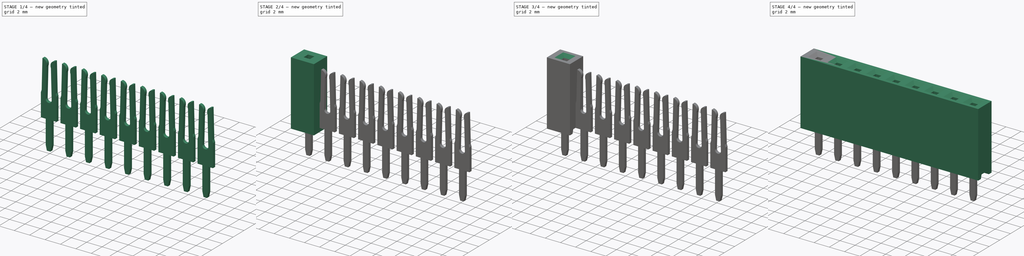
[diagram: build sequence overview — one tinted view per stage of 4, left to right]
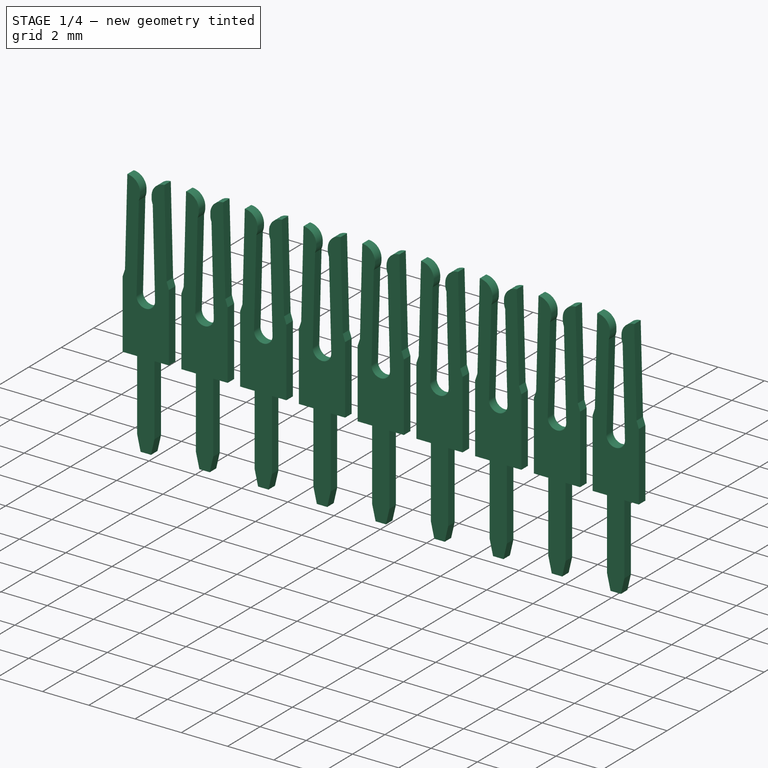
[diagram: stage 1 of 4 — iso view after this stage's code; geometry added in this stage tinted green]
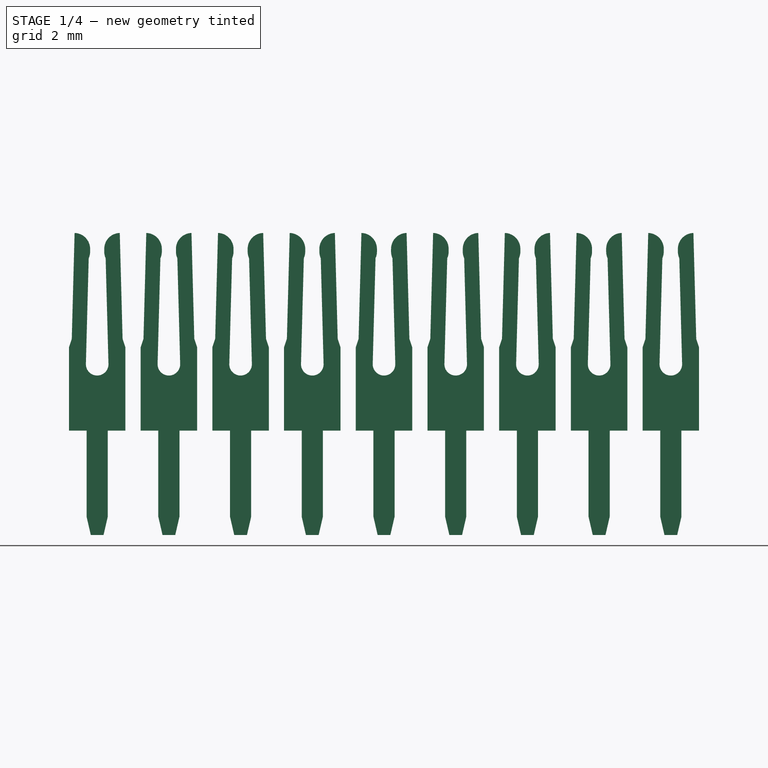
[diagram: stage 1 of 4 — front view after this stage's code; geometry added in this stage tinted green]
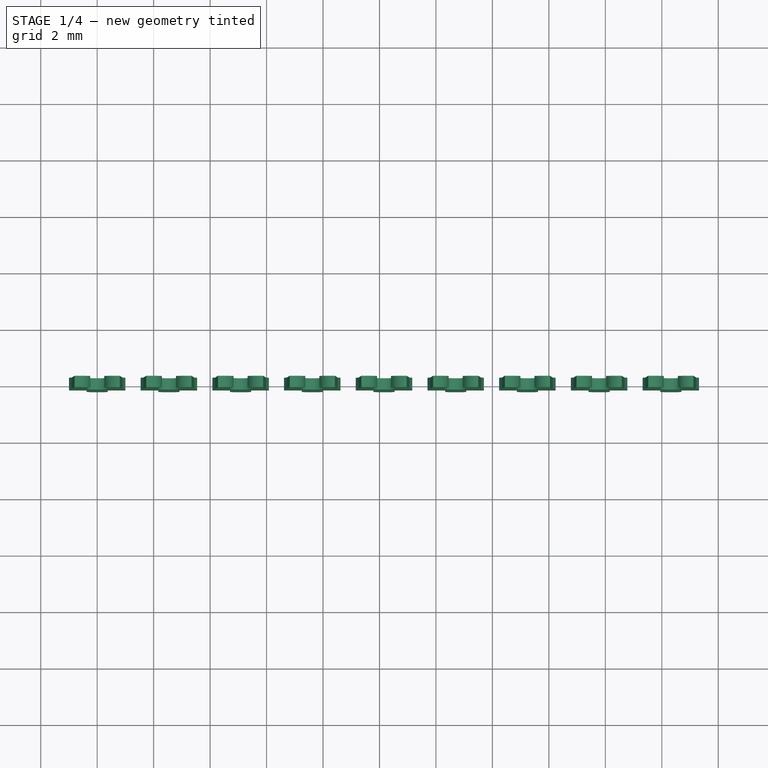
[diagram: stage 1 of 4 — top view after this stage's code; geometry added in this stage tinted green]
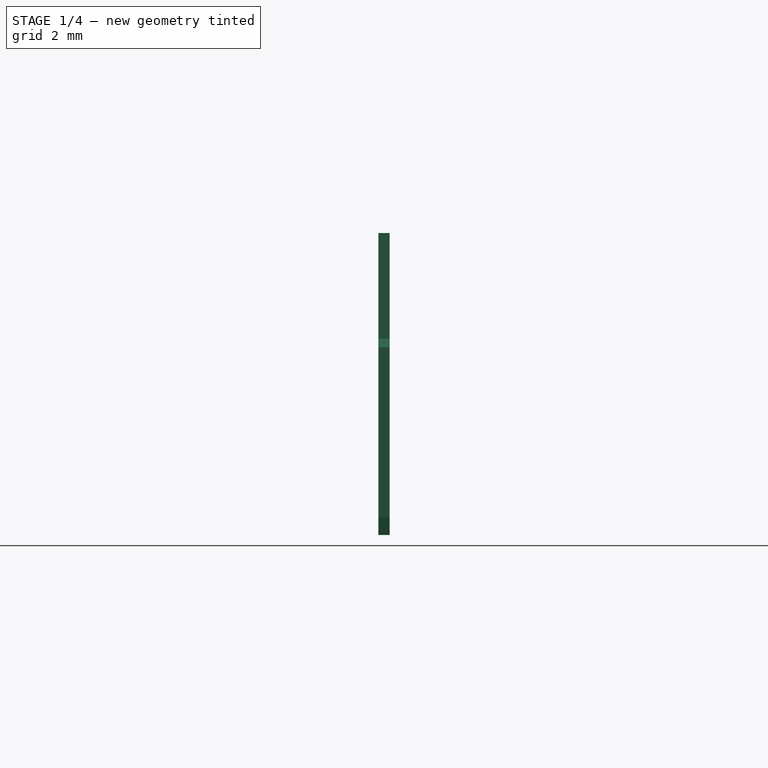
[diagram: stage 1 of 4 — right view after this stage's code; geometry added in this stage tinted green]
FCSTD DOCUMENT  (FreeCAD 1.0R38641 +468 (Git))
Label: pppcxx1lfbn
License: All rights reserved
objects: Sketcher::SketchObject×5, PartDesign::Pocket×3, PartDesign::Pad×2, PartDesign::Body×2, Part::FeaturePython×2, Spreadsheet::Sheet×1, PartDesign::Chamfer×1, Part::MultiFuse×1
note: 33 computed .brp shape members not serialized (recipe doc carries the construction recipe); baked Part::Feature solids carry a one-line shape summary decoded from their .brp

FEATURE [PartDesign::Body] Body
  AllowCompound = false
  Group = -> [Sketch,Pad,Sketch001,Pocket,Sketch002,Pocket001,Sketch003,Pocket002,Chamfer]
  Origin = -> Origin
  Tip = -> Chamfer
FEATURE [Sketcher::SketchObject] Sketch004
  ArcFitTolerance = 0
  AttachmentSupport = -> [XZ_Plane001]
  FullyConstrained = true
  MakeInternals = false
  MapMode = 5
  Placement = pos=(0,0,0) rot=(1,0,0;1.5708rad)
  expr: Constraints[28] = <<Master>>.pin_width
  expr: Constraints[60] = <<Master>>.height
  sketch-geometry (35):
    g0: LineSegment StartX=-1 StartY=0.5 StartZ=0 EndX=-0.375 EndY=0.5 EndZ=0
    g1: LineSegment StartX=-0.375 StartY=0.5 StartZ=0 EndX=-0.375 EndY=-2.55 EndZ=0
    g2: LineSegment StartX=-0.225 StartY=-3.2 StartZ=0 EndX=0.225 EndY=-3.2 EndZ=0
    g3: LineSegment StartX=0.375 StartY=-2.55 StartZ=0 EndX=0.375 EndY=0.5 EndZ=0
    g4: LineSegment StartX=0.375 StartY=0.5 StartZ=0 EndX=1 EndY=0.5 EndZ=0
    g5: LineSegment StartX=1 StartY=0.5 StartZ=0 EndX=1 EndY=3.45 EndZ=0
    g6: LineSegment StartX=1 StartY=3.45 StartZ=0 EndX=0.9 EndY=3.75 EndZ=0
    g7: LineSegment StartX=0.9 StartY=3.75 StartZ=0 EndX=0.8 EndY=7.5 EndZ=0
    g8: LineSegment StartX=-1 StartY=0.5 StartZ=0 EndX=-1 EndY=3.45 EndZ=0
    g9: LineSegment StartX=-1 StartY=3.45 StartZ=0 EndX=-0.9 EndY=3.75 EndZ=0
    g10: LineSegment StartX=-0.9 StartY=3.75 StartZ=0 EndX=-0.8 EndY=7.5 EndZ=0
    g11: ArcOfCircle CenterX=0 CenterY=2.85 CenterZ=0 NormalX=0 NormalY=0 NormalZ=1 AngleXU=0 Radius=0.4 StartAngle=3.11493 EndAngle=6.30985
    g12: ArcOfCircle CenterX=0.815063 CenterY=6.93514 CenterZ=0 NormalX=0 NormalY=0 NormalZ=1 AngleXU=0 Radius=0.565063 StartAngle=1.59746 EndAngle=3.14159
    g13: ArcOfCircle CenterX=-0.815063 CenterY=6.93514 CenterZ=0 NormalX=0 NormalY=0 NormalZ=1 AngleXU=0 Radius=0.565063 StartAngle=6.28319 EndAngle=7.82732
    g14: LineSegment StartX=-0.25 StartY=6.93514 StartZ=0 EndX=-0.25 EndY=6.83828 EndZ=0
    g15: LineSegment StartX=0.25 StartY=6.93514 StartZ=0 EndX=0.25 EndY=6.83828 EndZ=0
    g16: LineSegment StartX=-0.399858 StartY=2.86066 StartZ=0 EndX=-0.3 EndY=6.60533 EndZ=0
    g17: LineSegment StartX=0.399858 StartY=2.86066 StartZ=0 EndX=0.3 EndY=6.60533 EndZ=0
    g18: LineSegment [constr] StartX=-0.375 StartY=0.5 StartZ=0 EndX=0.375 EndY=0.5 EndZ=0
    g19: LineSegment [constr] StartX=-1 StartY=3.45 StartZ=0 EndX=1 EndY=3.45 EndZ=0
    g20: LineSegment [constr] StartX=-0.9 StartY=3.75 StartZ=0 EndX=0.9 EndY=3.75 EndZ=0
    g21: ArcOfCircle CenterX=0.817646 CenterY=6.83828 CenterZ=0 NormalX=0 NormalY=0 NormalZ=1 AngleXU=0 Radius=0.567646 StartAngle=3.14159 EndAngle=3.56446
    g22: ArcOfCircle CenterX=-0.817646 CenterY=6.83828 CenterZ=0 NormalX=0 NormalY=0 NormalZ=1 AngleXU=0 Radius=0.567646 StartAngle=5.86032 EndAngle=6.28319
    g23: LineSegment [constr] StartX=-0.3 StartY=6.60533 StartZ=0 EndX=0.3 EndY=6.60533 EndZ=0
    g24: LineSegment [constr] StartX=-0.8 StartY=7.5 StartZ=0 EndX=0.8 EndY=7.5 EndZ=0
    g25: LineSegment [constr] StartX=-0.25 StartY=6.93514 StartZ=0 EndX=0.25 EndY=6.93514 EndZ=0
    g26: LineSegment [constr] StartX=0.8 StartY=7.5 StartZ=0 EndX=0.8 EndY=8.5 EndZ=0
    g27: LineSegment [constr] StartX=0 StartY=2.85 StartZ=0 EndX=0 EndY=2.45 EndZ=0
    g28: LineSegment StartX=0.375 StartY=-2.55 StartZ=0 EndX=0.225 EndY=-3.2 EndZ=0
    g29: LineSegment StartX=-0.225 StartY=-3.2 StartZ=0 EndX=-0.375 EndY=-2.55 EndZ=0
    g30: LineSegment [constr] StartX=-0.375 StartY=-2.55 StartZ=0 EndX=0.375 EndY=-2.55 EndZ=0
    g31: LineSegment [constr] StartX=-0.375 StartY=-2.55 StartZ=0 EndX=-0.375 EndY=-3.2 EndZ=0
    g32: LineSegment [constr] StartX=-0.225 StartY=-3.2 StartZ=0 EndX=-0.375 EndY=-3.2 EndZ=0
    g33: LineSegment [constr] StartX=0.225 StartY=-3.2 StartZ=0 EndX=0.375 EndY=-3.2 EndZ=0
    g34: LineSegment [constr] StartX=0.375 StartY=-2.55 StartZ=0 EndX=0.375 EndY=-3.2 EndZ=0
  constraints (99):
    c: Coincident(g0,g1)
    c: Vertical(g1)
    c: Vertical(g3)
    c: Coincident(g3,g4)
    c: Coincident(g4,g5)
    c: Coincident(g5,g6)
    c: Coincident(g6,g7)
    c: Coincident(g0,g8)
    c: Coincident(g8,g9)
    c: Coincident(g9,g10)
    c: Vertical(g8)
    c: Horizontal(g0)
    c: Horizontal(g4)
    c: PointOnObject(g11,g-2)
    c: PointOnObject(g12,g7)
    c: Coincident(g12,g7)
    c: PointOnObject(g13,g10)
    c: Coincident(g13,g10)
    c: Coincident(g14,g13)
    c: Coincident(g16,g11)
    c: Coincident(g17,g11)
    c: Coincident(g12,g15)
    c: Vertical(g5)
    c: Equal(g0,g4)
    c: Equal(g9,g6)
    c: Coincident(g18,g0)
    c: Coincident(g18,g3)
    c: Horizontal(g18)
    c: DistanceX(g0,g4) = 2
    c: DistanceY(g-1,g4) = 0.5
    c: Coincident(g19,g8)
    c: Coincident(g19,g5)
    c: Horizontal(g19)
    c: Coincident(g20,g9)
    c: Coincident(g20,g6)
    c: PointOnObject(g21,g7)
    c: Coincident(g21,g15)
    c: Coincident(g21,g17)
    c: PointOnObject(g22,g10)
    c: Coincident(g22,g14)
    c: Coincident(g22,g16)
    c: Equal(g14,g15)
    c: Tangent(g14,g22)
    c: Tangent(g13,g14)
    c: Tangent(g15,g12)
    c: Tangent(g15,g21)
    c: Coincident(g23,g16)
    c: Coincident(g23,g17)
    c: Horizontal(g23)
    c: Coincident(g24,g10)
    c: Coincident(g24,g7)
    c: Coincident(g25,g13)
    c: Coincident(g25,g12)
    c: Horizontal(g25)
    c: Parallel(g17,g7)
    c: Parallel(g16,g10)
    c: Tangent(g11,g17)
    c: Tangent(g11,g16)
    c: Coincident(g26,g7)
    c: Vertical(g26)
    c: DistanceY(g-1,g26) = 8.5
    c: Coincident(g27,g11)
    c: PointOnObject(g27,g11)
    c: Vertical(g27)
    c: DistanceY(g27,g26) = 6.05
    c: Radius(g11) = 0.4
    c: DistanceX(g25) = 0.5
    c: DistanceX(g23) = 0.6
    c: DistanceY(g26) = 1
    c: DistanceX(g20) = 1.8
    c: DistanceY(g6,g26) = 4.75
    c: DistanceX(g24) = 1.6
    c: Symmetric(g10,g7,g-2)
    c: Vertical(g15)
    c: Horizontal(g20)
    c: DistanceY(g8,g9) = 0.3
    c: Coincident(g30,g29)
    c: Coincident(g30,g28)
    c: Horizontal(g30)
    c: Coincident(g3,g28)
    c: Coincident(g2,g28)
    c: Coincident(g2,g29)
    c: Coincident(g1,g29)
    c: Coincident(g31,g1)
    c: Vertical(g31)
    c: Coincident(g32,g2)
    c: Coincident(g32,g31)
    c: Horizontal(g32)
    c: Coincident(g33,g2)
    c: Horizontal(g33)
    c: Coincident(g34,g3)
    c: Coincident(g34,g33)
    c: Vertical(g34)
    c: Distance(g31,g34) = 0.75
    c: DistanceY(g33,g-1) = 3.2
    c: Equal(g32,g33)
    c: Distance(g33,g33) = 0.15
    c: Distance(g34,g34) = 0.65
    c: Symmetric(g2,g2,g-2)
FEATURE [PartDesign::Pad] Pad001
  Direction = (0,-1,2e-16)
  Length = 0.2
  Length2 = 0.2
  Placement = pos=(0,0,0) rot=(1,0,0;1.5708rad)
  Profile = -> Sketch004
  ReferenceAxis = -> Sketch004 [N_Axis]
  Suppressed = false
  Type = 4
  expr: Length = <<Master>>.pin_thick / 2
  expr: Length2 = <<Master>>.pin_thick / 2
FEATURE [Part::FeaturePython] Array001  # Draft array (typed FeaturePython)
  Angle = 360
  ArrayType = 0
  Axis = (0,0,1)
  Base = -> Body001
  Center = (0,0,0)
  Count = 9
  Fuse = false
  IntervalAxis = (0,0,0)
  IntervalX = (2.54,0,0)
  IntervalY = (0,100,0)
  IntervalZ = (0,0,100)
  NumberCircles = 3
  NumberPolar = 5
  NumberX = 9
  NumberY = 1
  NumberZ = 1
  RadialDistance = 50
  Symmetry = 1
  TangentialDistance = 25
  expr: NumberX = <<Master>>.pins
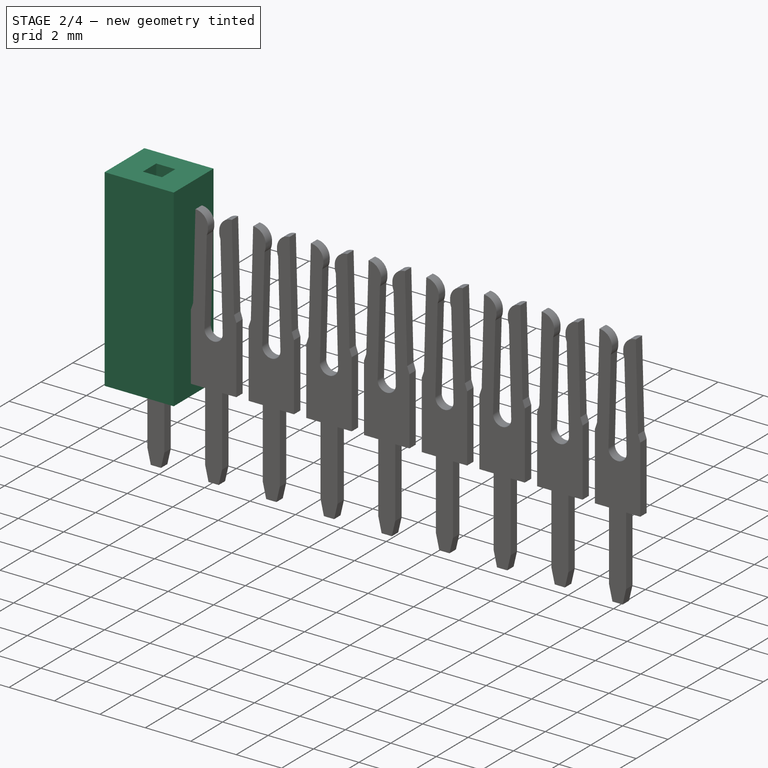
[diagram: stage 2 of 4 — iso view after this stage's code; geometry added in this stage tinted green]
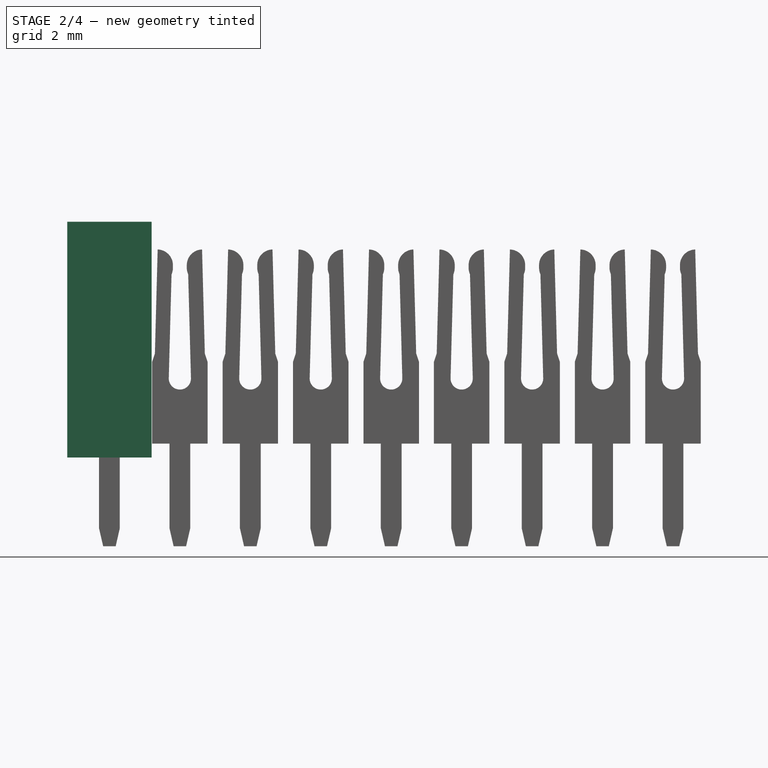
[diagram: stage 2 of 4 — front view after this stage's code; geometry added in this stage tinted green]
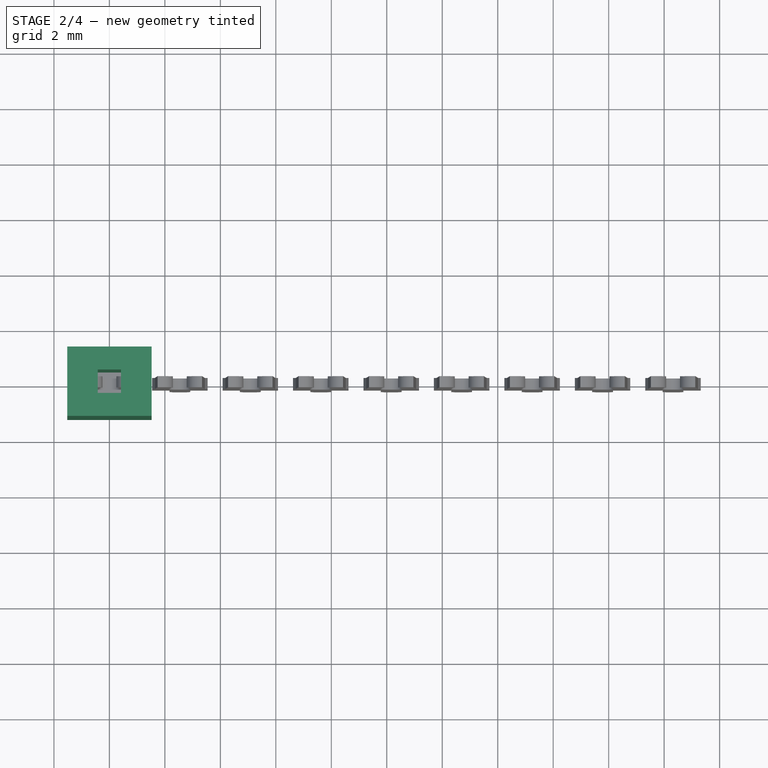
[diagram: stage 2 of 4 — top view after this stage's code; geometry added in this stage tinted green]
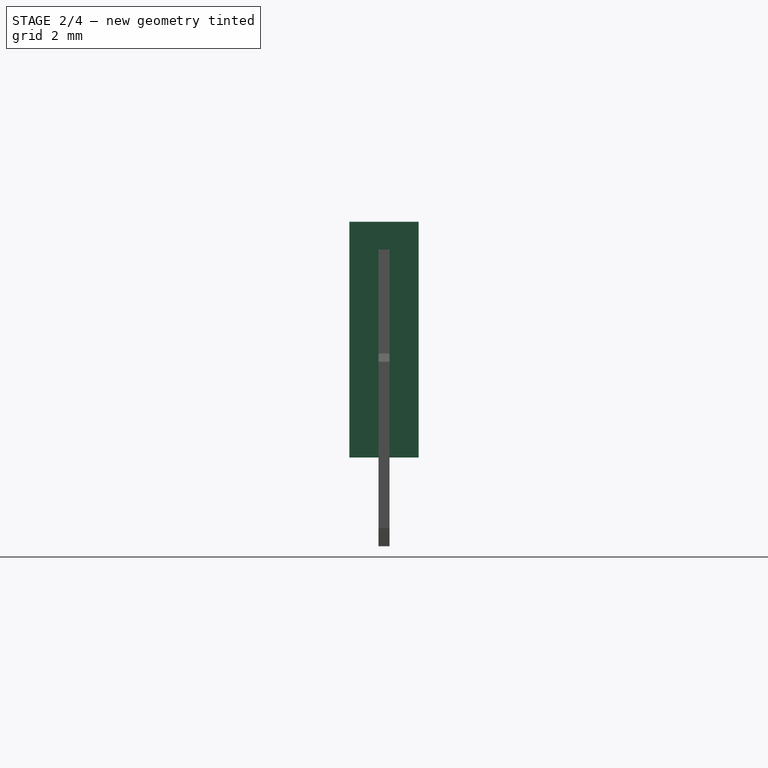
[diagram: stage 2 of 4 — right view after this stage's code; geometry added in this stage tinted green]
FEATURE [Spreadsheet::Sheet] Spreadsheet  label="Master"
  cells = A1='Constants; A2='pins; B2(pins)=9; C2='Number of pins; A3='pin pitch; B3(pin_pitch)==2.54 mm; C3='Pin pitch; A4='height; B4(height)==8.5 mm; C4='Height of housing; A5='width; B5(width)==2.5 mm; C5='Width of housing; A6='side; B6(side)==0.5 mm; C6='Extra length on each side of pin; A7='pin thick; B7(pin_thick)==0.4 mm; C7='Pin thickness; A8='pin width; B8(pin_width)==2 mm; C8='Pin width; A10='Calculated; A11='length_tot; B11(length_tot)==pins * pin_pitch + side; C11='Dim B: Length of housing, Valid lengths: 6.0, 8.0, 10.0, 12.0, 14.0, 16.0, 18.0, 20.0, 22.0, 24.0, 26.0, 28.0, 30.0, 32.0, 34.0; A12='length_pin; B12(length_pin)==(pins - 1) * pin_pitch; C12='Dim A: Total with of pins
FEATURE [Sketcher::SketchObject] Sketch
  ArcFitTolerance = 1e-06
  AttachmentSupport = -> [XY_Plane]
  FullyConstrained = true
  MakeInternals = false
  MapMode = 5
  expr: Constraints[6] = <<Master>>.pin_pitch + <<Master>>.side
  expr: Constraints[7] = <<Master>>.width
  sketch-geometry (4):
    g0: LineSegment StartX=-1.52 StartY=1.25 StartZ=0 EndX=-1.52 EndY=-1.25 EndZ=0
    g1: LineSegment StartX=-1.52 StartY=-1.25 StartZ=0 EndX=1.52 EndY=-1.25 EndZ=0
    g2: LineSegment StartX=1.52 StartY=-1.25 StartZ=0 EndX=1.52 EndY=1.25 EndZ=0
    g3: LineSegment StartX=1.52 StartY=1.25 StartZ=0 EndX=-1.52 EndY=1.25 EndZ=0
  constraints (10):
    c: Coincident(g0,g1)
    c: Coincident(g1,g2)
    c: Coincident(g2,g3)
    c: Coincident(g3,g0)
    c: Vertical(g0)
    c: Horizontal(g1)
    c: Distance(g3,g3) = 3.04
    c: DistanceY(g2,g2) = 2.5
    c: Symmetric(g2,g1,g-1)
    c: Symmetric(g0,g2,g-2)
FEATURE [PartDesign::Pad] Pad
  Direction = (0,0,1)
  Length = 8.5
  Length2 = 10
  Profile = -> Sketch
  ReferenceAxis = -> Sketch [N_Axis]
  Suppressed = false
  Type = 0
  expr: Length = <<Master>>.height
FEATURE [Sketcher::SketchObject] Sketch001
  ArcFitTolerance = 0
  AttachmentOffset = pos=(0,0,8.5) rot=(0,0,1;0rad)
  AttachmentSupport = -> [XY_Plane]
  FullyConstrained = true
  MakeInternals = false
  MapMode = 5
  Placement = pos=(0,0,8.5) rot=(0,0,1;0rad)
  expr: .AttachmentOffset.Base.z = <<Master>>.height
  sketch-geometry (4):
    g0: LineSegment StartX=-0.42 StartY=0.42 StartZ=0 EndX=0.42 EndY=0.42 EndZ=0
    g1: LineSegment StartX=0.42 StartY=0.42 StartZ=0 EndX=0.42 EndY=-0.42 EndZ=0
    g2: LineSegment StartX=0.42 StartY=-0.42 StartZ=0 EndX=-0.42 EndY=-0.42 EndZ=0
    g3: LineSegment StartX=-0.42 StartY=-0.42 StartZ=0 EndX=-0.42 EndY=0.42 EndZ=0
  constraints (10):
    c: Coincident(g0,g1)
    c: Coincident(g1,g2)
    c: Coincident(g2,g3)
    c: Coincident(g3,g0)
    c: Horizontal(g2)
    c: Vertical(g3)
    c: Equal(g0,g1)
    c: Symmetric(g0,g0,g-2)
    c: Symmetric(g0,g1,g-1)
    c: DistanceX(g0) = 0.84
FEATURE [PartDesign::Pocket] Pocket
  BaseFeature = -> Pad
  Direction = (0,0,-1)
  Length = 6.04
  Length2 = 5
  Profile = -> Sketch001
  ReferenceAxis = -> Sketch001 [N_Axis]
  Suppressed = false
  Type = 0
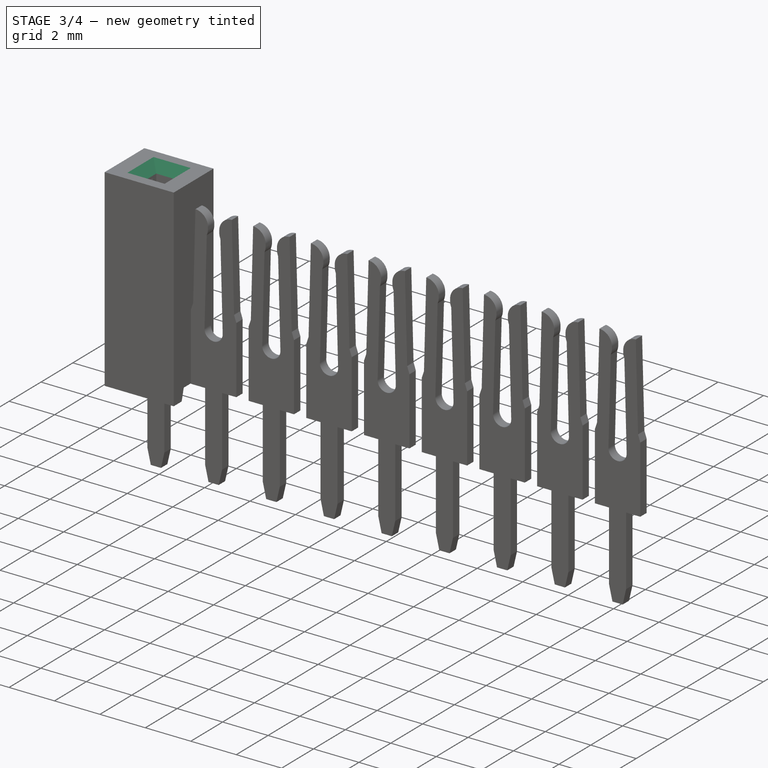
[diagram: stage 3 of 4 — iso view after this stage's code; geometry added in this stage tinted green]
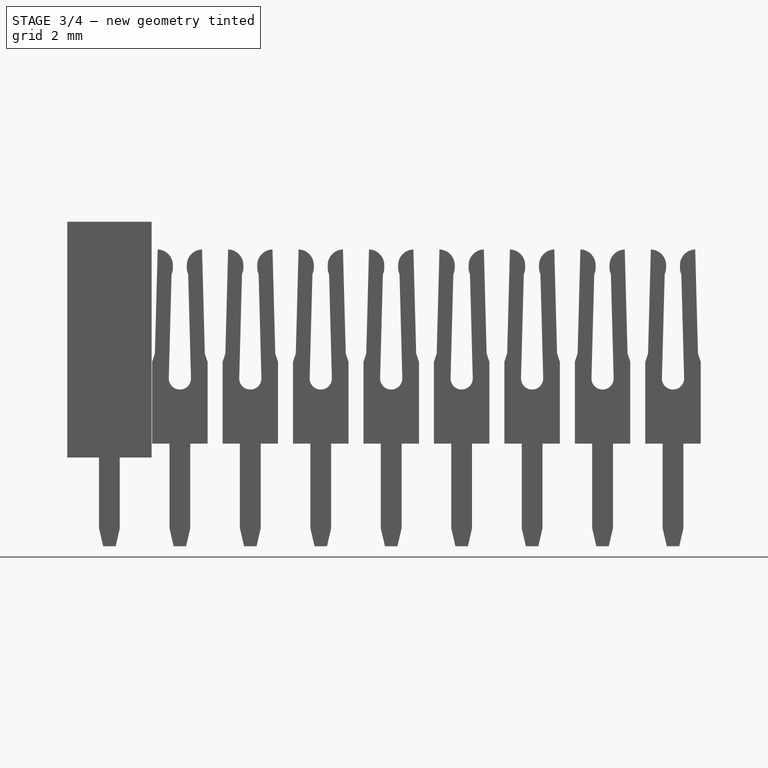
[diagram: stage 3 of 4 — front view after this stage's code; geometry added in this stage tinted green]
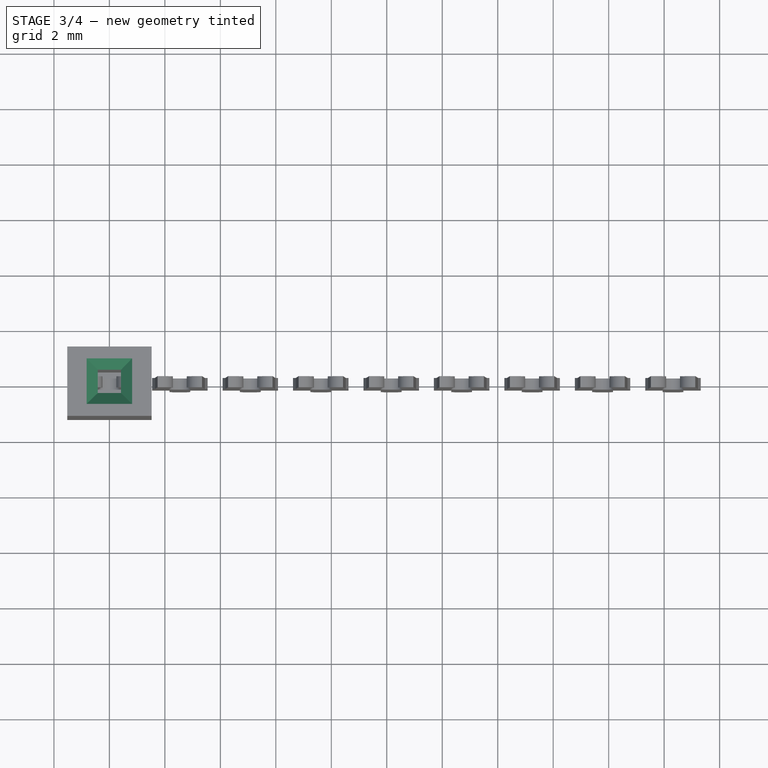
[diagram: stage 3 of 4 — top view after this stage's code; geometry added in this stage tinted green]
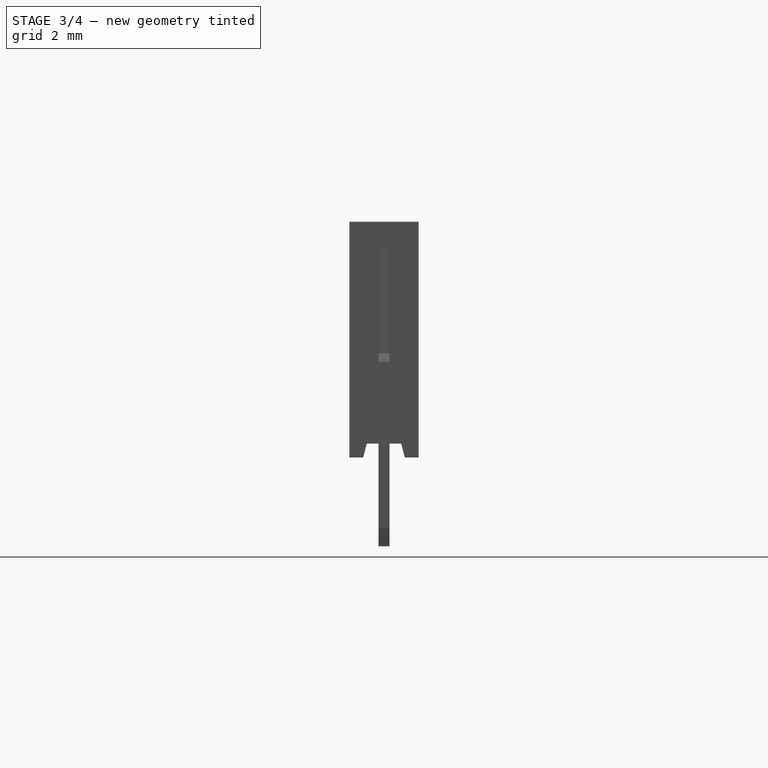
[diagram: stage 3 of 4 — right view after this stage's code; geometry added in this stage tinted green]
FEATURE [Sketcher::SketchObject] Sketch002
  ArcFitTolerance = 0
  AttachmentSupport = -> [YZ_Plane]
  FullyConstrained = true
  MakeInternals = false
  MapMode = 5
  Placement = pos=(0,0,0) rot=(0.57735,0.57735,0.57735;2.0944rad)
  sketch-geometry (4):
    g0: LineSegment StartX=-0.75 StartY=0 StartZ=0 EndX=0.75 EndY=0 EndZ=0
    g1: LineSegment StartX=0.75 StartY=0 StartZ=0 EndX=0.62 EndY=0.5 EndZ=0
    g2: LineSegment StartX=0.62 StartY=0.5 StartZ=0 EndX=-0.62 EndY=0.5 EndZ=0
    g3: LineSegment StartX=-0.62 StartY=0.5 StartZ=0 EndX=-0.75 EndY=0 EndZ=0
  constraints (10):
    c: Coincident(g0,g1)
    c: Coincident(g1,g2)
    c: Coincident(g2,g3)
    c: Coincident(g3,g0)
    c: Symmetric(g0,g0,g-2)
    c: Symmetric(g2,g1,g-2)
    c: DistanceX(g0,g0) = 1.5
    c: DistanceX(g2,g2) = 1.24
    c: DistanceY(g0,g1) = 0.5
    c: PointOnObject(g-1,g0)
FEATURE [PartDesign::Pocket] Pocket001
  BaseFeature = -> Pocket
  Direction = (-1,0,0)
  Length = 5
  Length2 = 5
  Midplane = true
  Profile = -> Sketch002
  ReferenceAxis = -> Sketch002 [N_Axis]
  Suppressed = false
  Type = 1
FEATURE [Sketcher::SketchObject] Sketch003
  ArcFitTolerance = 0
  AttachmentSupport = -> [XY_Plane]
  FullyConstrained = true
  MakeInternals = false
  MapMode = 5
  expr: Constraints[6] = <<Master>>.pin_width
  expr: Constraints[9] = <<Master>>.pin_thick
  sketch-geometry (4):
    g0: LineSegment StartX=-1 StartY=0.2 StartZ=0 EndX=1 EndY=0.2 EndZ=0
    g1: LineSegment StartX=1 StartY=0.2 StartZ=0 EndX=1 EndY=-0.2 EndZ=0
    g2: LineSegment StartX=1 StartY=-0.2 StartZ=0 EndX=-1 EndY=-0.2 EndZ=0
    g3: LineSegment StartX=-1 StartY=-0.2 StartZ=0 EndX=-1 EndY=0.2 EndZ=0
  constraints (10):
    c: Coincident(g0,g1)
    c: Coincident(g1,g2)
    c: Coincident(g2,g3)
    c: Coincident(g3,g0)
    c: Horizontal(g2)
    c: Vertical(g1)
    c: DistanceX(g0) = 2
    c: Symmetric(g0,g0,g-2)
    c: Symmetric(g2,g0,g-1)
    c: DistanceY(g3) = 0.4
FEATURE [PartDesign::Pocket] Pocket002
  BaseFeature = -> Pocket001
  Direction = (0,0,-1)
  Length = 8
  Length2 = 5
  Profile = -> Sketch003
  ReferenceAxis = -> Sketch003 [N_Axis]
  Reversed = true
  Suppressed = false
  Type = 0
FEATURE [PartDesign::Chamfer] Chamfer
  Angle = 45
  Base = -> Pocket002 [Edge29,Edge30,Edge31,Edge28]
  BaseFeature = -> Pocket002
  ChamferType = 0
  FlipDirection = false
  Size = 0.4
  Size2 = 1
  SupportTransform = false
  Suppressed = false
  UseAllEdges = false
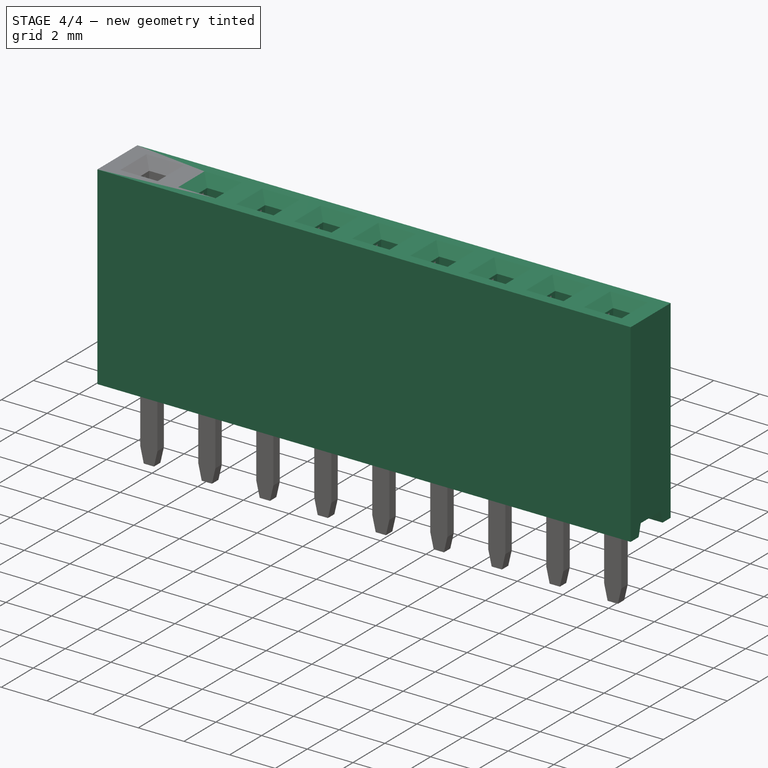
[diagram: stage 4 of 4 — iso view after this stage's code; geometry added in this stage tinted green]
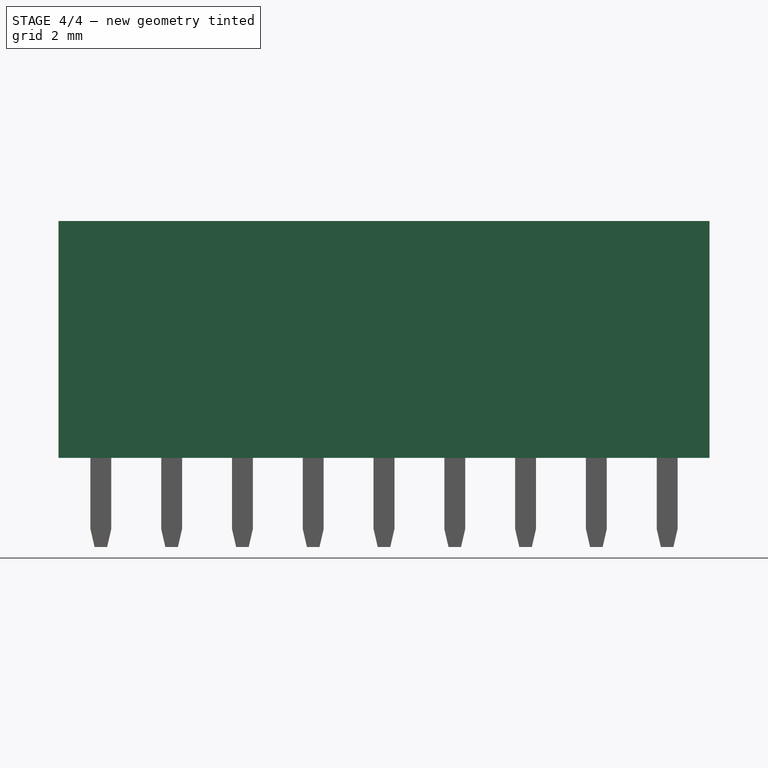
[diagram: stage 4 of 4 — front view after this stage's code; geometry added in this stage tinted green]
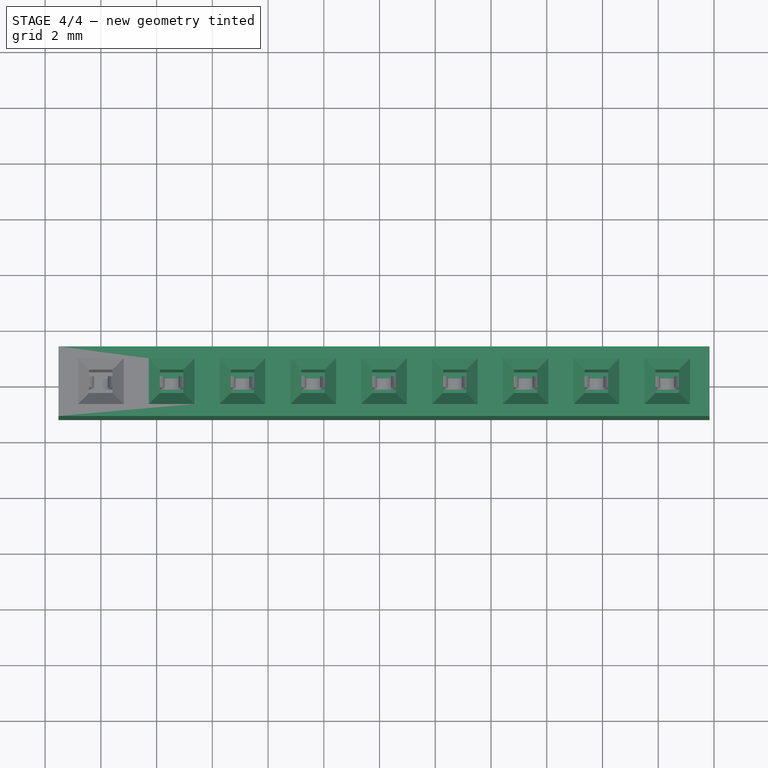
[diagram: stage 4 of 4 — top view after this stage's code; geometry added in this stage tinted green]
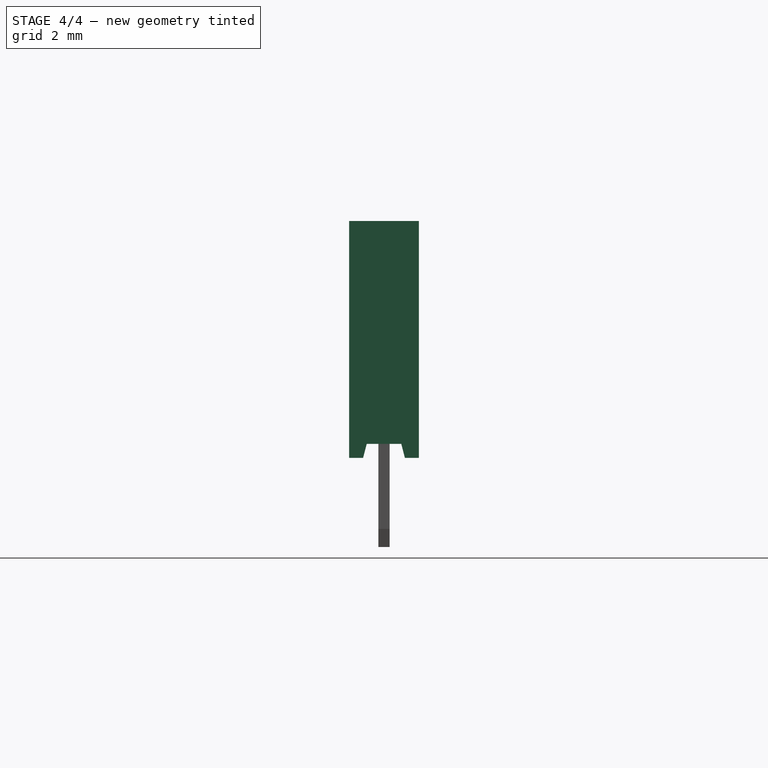
[diagram: stage 4 of 4 — right view after this stage's code; geometry added in this stage tinted green]
FEATURE [PartDesign::Body] Body001
  AllowCompound = false
  Group = -> [Sketch004,Pad001]
  Origin = -> Origin001
  Tip = -> Pad001
FEATURE [Part::FeaturePython] Array  # Draft array (typed FeaturePython)
  Angle = 360
  ArrayType = 0
  Axis = (0,0,1)
  Base = -> Body
  Center = (0,0,0)
  Count = 9
  Fuse = false
  IntervalAxis = (0,0,0)
  IntervalX = (2.54,0,0)
  IntervalY = (0,100,0)
  IntervalZ = (0,0,100)
  NumberCircles = 3
  NumberPolar = 5
  NumberX = 9
  NumberY = 1
  NumberZ = 1
  RadialDistance = 50
  Symmetry = 1
  TangentialDistance = 25
  expr: NumberX = <<Master>>.pins
FEATURE [Part::MultiFuse] Fusion
  Refine = true
  Shapes = -> [Array]
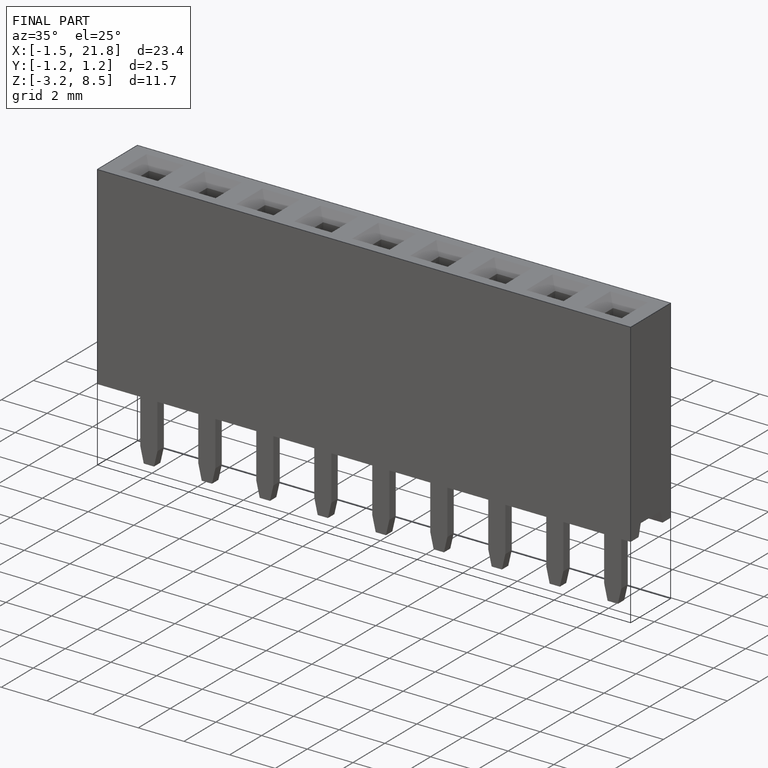
[diagram: finished part — iso view with bounding-box wireframe]
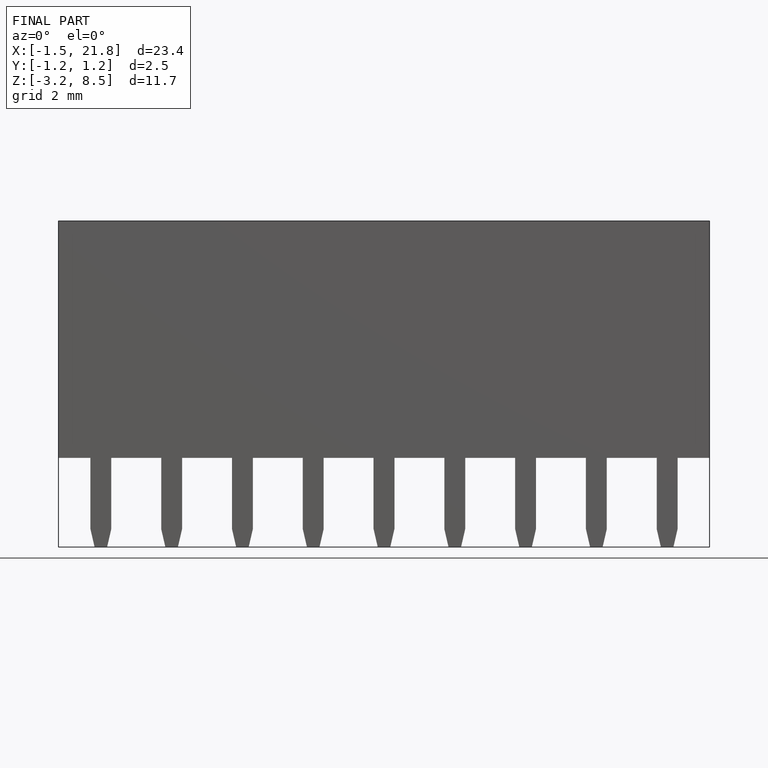
[diagram: finished part — front view with bounding-box wireframe]
